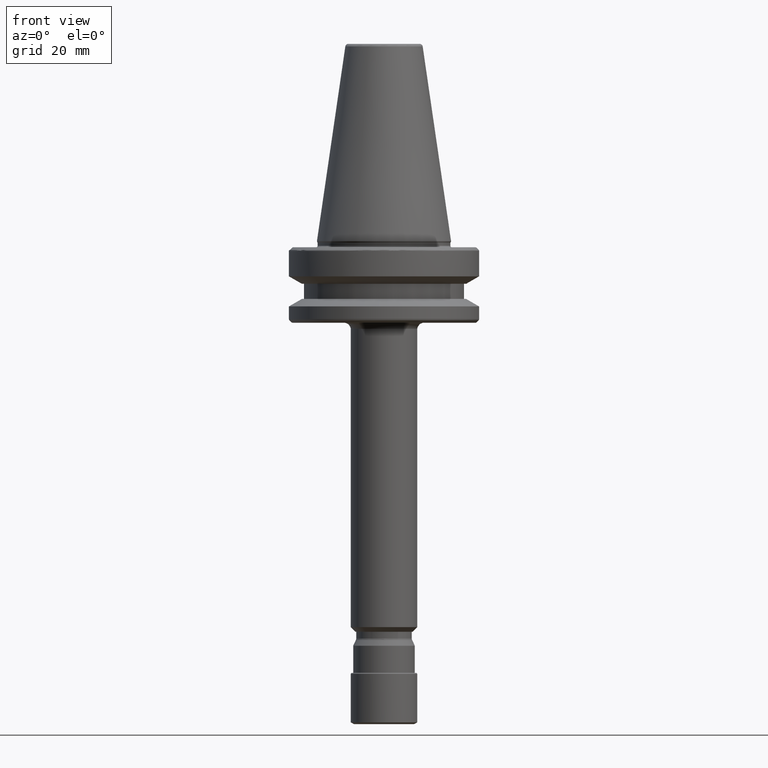
[diagram: clean part render]
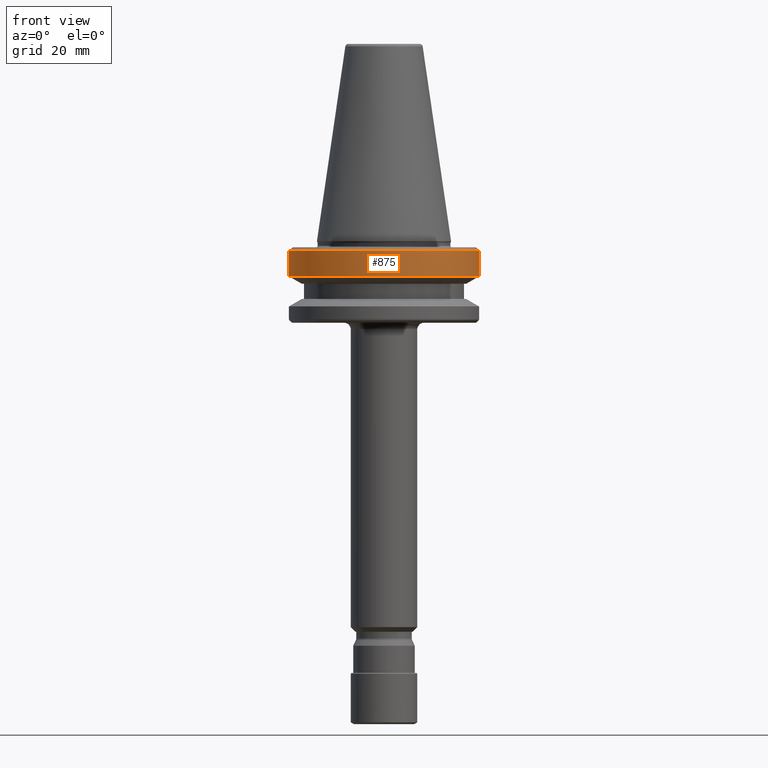
[diagram: same view with one face highlighted and labeled with its STEP entity id]
A machine part, front view. The second image highlights one B-rep face of the part: STEP entity #875.
In plain terms, the highlighted cylindrical surface (partial cylindrical patch) has radius 31.5 mm, axis along (0, 0, 1).
Its self-contained STEP definition (entity closure, byte-faithful):
#1 = ORIENTED_EDGE ( 'NONE', *, *, #175, .T. ) ;
#39 = AXIS2_PLACEMENT_3D ( 'NONE', #1282, #3442, #1863 ) ;
#66 = ORIENTED_EDGE ( 'NONE', *, *, #1841, .F. ) ;
#112 = DIRECTION ( 'NONE',  ( 0.0000000000000000000, 0.0000000000000000000, 1.000000000000000000 ) ) ;
#152 = DIRECTION ( 'NONE',  ( 0.0000000000000000000, 0.0000000000000000000, 1.000000000000000000 ) ) ;
#175 = EDGE_CURVE ( 'NONE', #1770, #543, #2132, .T. ) ;
#181 = ORIENTED_EDGE ( 'NONE', *, *, #1792, .F. ) ;
#319 = EDGE_LOOP ( 'NONE', ( #681, #1, #954, #1597, #66, #181 ) ) ;
#407 = CARTESIAN_POINT ( 'NONE',  ( -31.50000000000000000, 3.857637417314162700E-015, -11.62411723882629600 ) ) ;
#445 = CARTESIAN_POINT ( 'NONE',  ( 0.0000000000000000000, 0.0000000000000000000, -3.165685424999999900 ) ) ;
#525 = EDGE_CURVE ( 'NONE', #909, #2330, #1306, .T. ) ;
#543 = VERTEX_POINT ( 'NONE', #1819 ) ;
#570 = CARTESIAN_POINT ( 'NONE',  ( 8.717453373097740200, -30.26972095515114300, -3.165685425250003100 ) ) ;
#616 = DIRECTION ( 'NONE',  ( 1.000000000000000000, 0.0000000000000000000, 0.0000000000000000000 ) ) ;
#656 = AXIS2_PLACEMENT_3D ( 'NONE', #445, #112, #1550 ) ;
#681 = ORIENTED_EDGE ( 'NONE', *, *, #2179, .F. ) ;
#720 = DIRECTION ( 'NONE',  ( -0.0000000000000000000, -0.0000000000000000000, 1.000000000000000000 ) ) ;
#870 = CARTESIAN_POINT ( 'NONE',  ( 0.0000000000000000000, 0.0000000000000000000, -11.62411723882629600 ) ) ;
#875 = ADVANCED_FACE ( 'NONE', ( #1189 ), #1838, .T. ) ;
#909 = VERTEX_POINT ( 'NONE', #570 ) ;
#954 = ORIENTED_EDGE ( 'NONE', *, *, #3311, .T. ) ;
#1189 = FACE_OUTER_BOUND ( 'NONE', #319, .T. ) ;
#1282 = CARTESIAN_POINT ( 'NONE',  ( 0.0000000000000000000, 0.0000000000000000000, -3.165685425999998700 ) ) ;
#1306 = CIRCLE ( 'NONE', #656, 31.50000000000000000 ) ;
#1372 = AXIS2_PLACEMENT_3D ( 'NONE', #1694, #2769, #2242 ) ;
#1550 = DIRECTION ( 'NONE',  ( 0.0000000000000000000, -1.000000000000000000, 1.376764663473656500E-017 ) ) ;
#1590 = AXIS2_PLACEMENT_3D ( 'NONE', #3377, #3590, #2016 ) ;
#1597 = ORIENTED_EDGE ( 'NONE', *, *, #525, .F. ) ;
#1694 = CARTESIAN_POINT ( 'NONE',  ( 0.0000000000000000000, 0.0000000000000000000, -11.59985799600000100 ) ) ;
#1739 = CARTESIAN_POINT ( 'NONE',  ( -31.50000000000000000, 3.857637417314162700E-015, -11.59985799600000100 ) ) ;
#1770 = VERTEX_POINT ( 'NONE', #407 ) ;
#1792 = EDGE_CURVE ( 'NONE', #1941, #3477, #2904, .T. ) ;
#1819 = CARTESIAN_POINT ( 'NONE',  ( 31.50000000000000000, 0.0000000000000000000, -11.62411723882629600 ) ) ;
#1838 = CYLINDRICAL_SURFACE ( 'NONE', #1372, 31.50000000000000000 ) ;
#1841 = EDGE_CURVE ( 'NONE', #3477, #909, #2973, .T. ) ;
#1863 = DIRECTION ( 'NONE',  ( 0.0000000000000000000, -1.000000000000000000, -2.753529326947312900E-017 ) ) ;
#1880 = DIRECTION ( 'NONE',  ( 0.0000000000000000000, 0.0000000000000000000, 1.000000000000000000 ) ) ;
#1941 = VERTEX_POINT ( 'NONE', #2053 ) ;
#2016 = DIRECTION ( 'NONE',  ( 1.000000000000000000, 0.0000000000000000000, 0.0000000000000000000 ) ) ;
#2053 = CARTESIAN_POINT ( 'NONE',  ( -31.50000000000000000, 3.857637417314162700E-015, -3.165685425999998700 ) ) ;
#2132 = CIRCLE ( 'NONE', #3558, 31.50000000000000000 ) ;
#2179 = EDGE_CURVE ( 'NONE', #1770, #1941, #3062, .T. ) ;
#2242 = DIRECTION ( 'NONE',  ( 1.000000000000000000, 0.0000000000000000000, 0.0000000000000000000 ) ) ;
#2302 = LINE ( 'NONE', #3458, #2578 ) ;
#2330 = VERTEX_POINT ( 'NONE', #3215 ) ;
#2578 = VECTOR ( 'NONE', #1880, 1000.000000000000000 ) ;
#2769 = DIRECTION ( 'NONE',  ( 0.0000000000000000000, 0.0000000000000000000, 1.000000000000000000 ) ) ;
#2904 = CIRCLE ( 'NONE', #39, 31.50000000000000000 ) ;
#2973 = CIRCLE ( 'NONE', #1590, 31.50000000023570100 ) ;
#3025 = CARTESIAN_POINT ( 'NONE',  ( -8.599437156416144000, -30.30345987849734300, -3.165685425250003100 ) ) ;
#3062 = LINE ( 'NONE', #1739, #3404 ) ;
#3215 = CARTESIAN_POINT ( 'NONE',  ( 31.50000000000000000, 3.230377770835346500E-009, -3.165685425250000000 ) ) ;
#3311 = EDGE_CURVE ( 'NONE', #543, #2330, #2302, .T. ) ;
#3377 = CARTESIAN_POINT ( 'NONE',  ( 0.0000000000000000000, 0.0000000000000000000, -3.165685425250003100 ) ) ;
#3404 = VECTOR ( 'NONE', #152, 1000.000000000000000 ) ;
#3442 = DIRECTION ( 'NONE',  ( 0.0000000000000000000, 0.0000000000000000000, 1.000000000000000000 ) ) ;
#3458 = CARTESIAN_POINT ( 'NONE',  ( 31.50000000000000000, 0.0000000000000000000, -11.59985799600000100 ) ) ;
#3477 = VERTEX_POINT ( 'NONE', #3025 ) ;
#3558 = AXIS2_PLACEMENT_3D ( 'NONE', #870, #720, #616 ) ;
#3590 = DIRECTION ( 'NONE',  ( -0.0000000000000000000, -0.0000000000000000000, 1.000000000000000000 ) ) ;